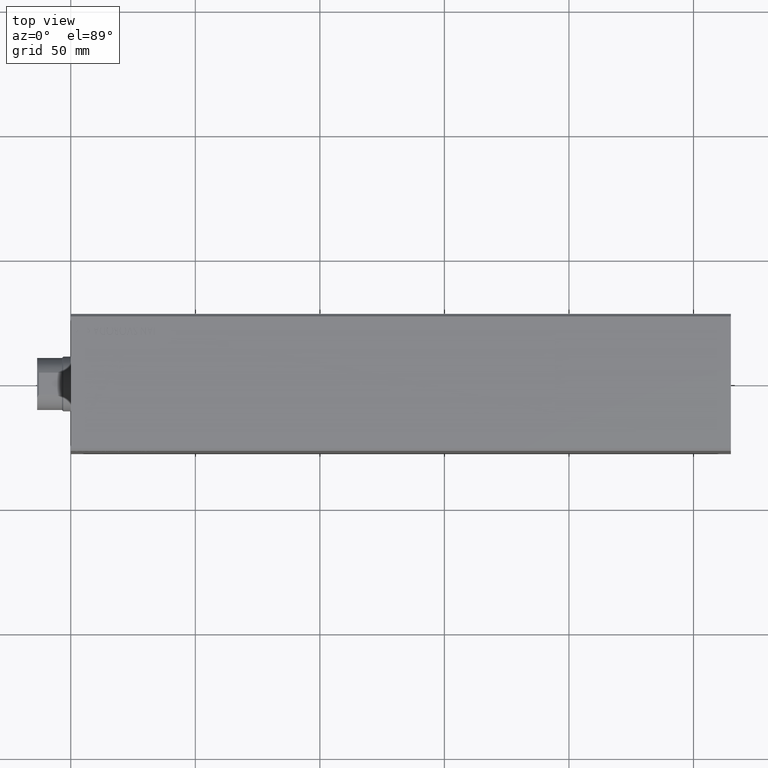
[diagram: clean part render]
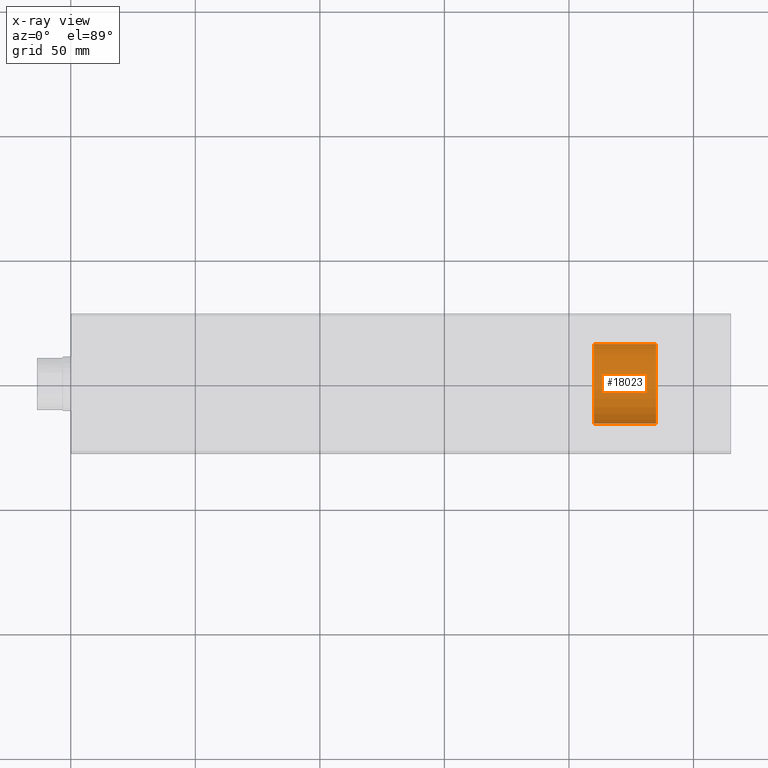
[diagram: x-ray — body ghosted, one internal face saturated and labeled with its STEP entity id]
A machine part, top view, then the same camera in x-ray: the body is ghosted and one INTERNAL B-rep face — a face not visible from any outside direction — is saturated and labeled: STEP entity #18023.
In plain terms, the highlighted cylindrical surface (partial cylindrical patch) has radius 16 mm, axis along (-1, -0, 0).
Its self-contained STEP definition (entity closure, byte-faithful):
#413 = DIRECTION ( 'NONE',  ( -0.000000000000000000, -1.771235945899252773E-16, 1.000000000000000000 ) ) ;
#3989 = ORIENTED_EDGE ( 'NONE', *, *, #29840, .F. ) ;
#4507 = EDGE_CURVE ( 'NONE', #9601, #43375, #5711, .T. ) ;
#5033 = CARTESIAN_POINT ( 'NONE',  ( 0.000000000000000000, -4.401521325559641925E-14, 248.5000000000000000 ) ) ;
#5684 = DIRECTION ( 'NONE',  ( 0.000000000000000000, -1.000000000000000000, -2.168404344971008375E-16 ) ) ;
#5711 = LINE ( 'NONE', #26706, #21030 ) ;
#5996 = ORIENTED_EDGE ( 'NONE', *, *, #11119, .T. ) ;
#7743 = CARTESIAN_POINT ( 'NONE',  ( 0.000000000000000000, -16.00000000000004619, 248.5000000000000000 ) ) ;
#8692 = ORIENTED_EDGE ( 'NONE', *, *, #4507, .F. ) ;
#9601 = VERTEX_POINT ( 'NONE', #14572 ) ;
#11119 = EDGE_CURVE ( 'NONE', #23202, #25248, #30984, .T. ) ;
#11731 = FACE_OUTER_BOUND ( 'NONE', #24979, .T. ) ;
#14572 = CARTESIAN_POINT ( 'NONE',  ( 1.959434878635765131E-15, 16.00000000000000000, 2.833977513438804437E-15 ) ) ;
#14650 = DIRECTION ( 'NONE',  ( -0.000000000000000000, -1.771235945899252773E-16, 1.000000000000000000 ) ) ;
#15976 = DIRECTION ( 'NONE',  ( -0.000000000000000000, -1.771235945899252773E-16, 1.000000000000000000 ) ) ;
#17019 = EDGE_CURVE ( 'NONE', #9601, #23202, #43185, .T. ) ;
#18023 = ADVANCED_FACE ( 'NONE', ( #11731 ), #35620, .T. ) ;
#18703 = DIRECTION ( 'NONE',  ( 0.000000000000000000, -1.000000000000000000, -1.771235945899252773E-16 ) ) ;
#20325 = CARTESIAN_POINT ( 'NONE',  ( 0.000000000000000000, -16.00000000000000000, -2.833977513438804437E-15 ) ) ;
#21030 = VECTOR ( 'NONE', #15976, 1000.000000000000000 ) ;
#22522 = AXIS2_PLACEMENT_3D ( 'NONE', #39876, #25617, #18703 ) ;
#22872 = CARTESIAN_POINT ( 'NONE',  ( 0.000000000000000000, -4.428089864748118843E-15, 24.99999999999999289 ) ) ;
#22965 = ORIENTED_EDGE ( 'NONE', *, *, #17019, .T. ) ;
#23202 = VERTEX_POINT ( 'NONE', #20325 ) ;
#24011 = CARTESIAN_POINT ( 'NONE',  ( 1.959434878635765131E-15, 16.00000000000000000, 24.99999999999999645 ) ) ;
#24979 = EDGE_LOOP ( 'NONE', ( #8692, #22965, #5996, #3989 ) ) ;
#25248 = VERTEX_POINT ( 'NONE', #41470 ) ;
#25617 = DIRECTION ( 'NONE',  ( -0.000000000000000000, -1.771235945899252773E-16, 1.000000000000000000 ) ) ;
#26706 = CARTESIAN_POINT ( 'NONE',  ( 1.959434878635765131E-15, 15.99999999999995559, 248.5000000000000000 ) ) ;
#28298 = VECTOR ( 'NONE', #413, 1000.000000000000000 ) ;
#29840 = EDGE_CURVE ( 'NONE', #43375, #25248, #35700, .T. ) ;
#30984 = LINE ( 'NONE', #7743, #28298 ) ;
#31331 = AXIS2_PLACEMENT_3D ( 'NONE', #22872, #36274, #5684 ) ;
#34739 = DIRECTION ( 'NONE',  ( 0.000000000000000000, -1.000000000000000000, 0.000000000000000000 ) ) ;
#35620 = CYLINDRICAL_SURFACE ( 'NONE', #41806, 16.00000000000000000 ) ;
#35700 = CIRCLE ( 'NONE', #31331, 16.00000000000000355 ) ;
#36274 = DIRECTION ( 'NONE',  ( -0.000000000000000000, -1.771235945899252773E-16, 1.000000000000000000 ) ) ;
#39876 = CARTESIAN_POINT ( 'NONE',  ( 0.000000000000000000, 1.232595164407830946E-29, 0.000000000000000000 ) ) ;
#41470 = CARTESIAN_POINT ( 'NONE',  ( 0.000000000000000000, -16.00000000000000711, 24.99999999999998934 ) ) ;
#41806 = AXIS2_PLACEMENT_3D ( 'NONE', #5033, #14650, #34739 ) ;
#43185 = CIRCLE ( 'NONE', #22522, 16.00000000000000000 ) ;
#43375 = VERTEX_POINT ( 'NONE', #24011 ) ;